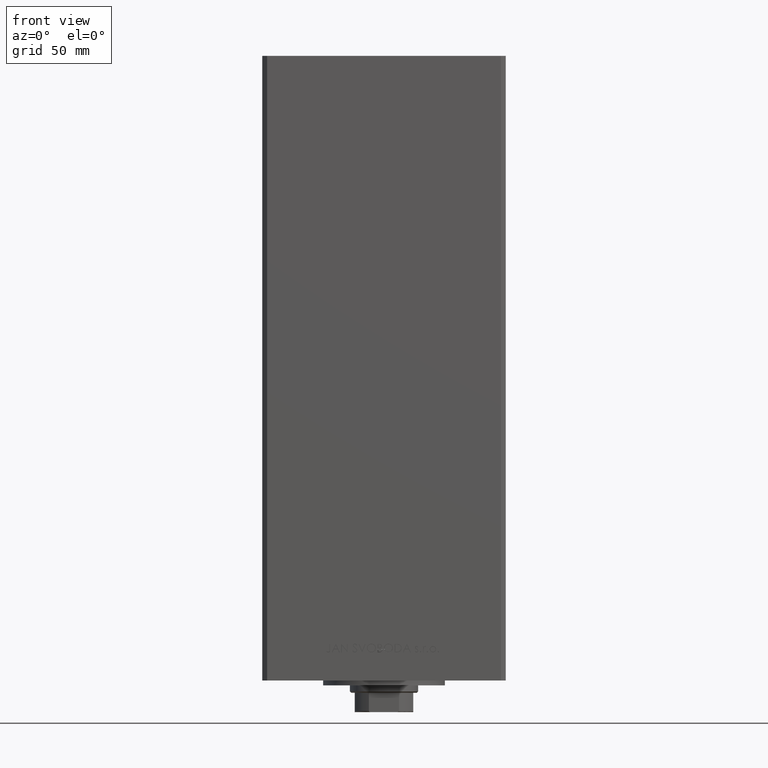
[diagram: clean part render]
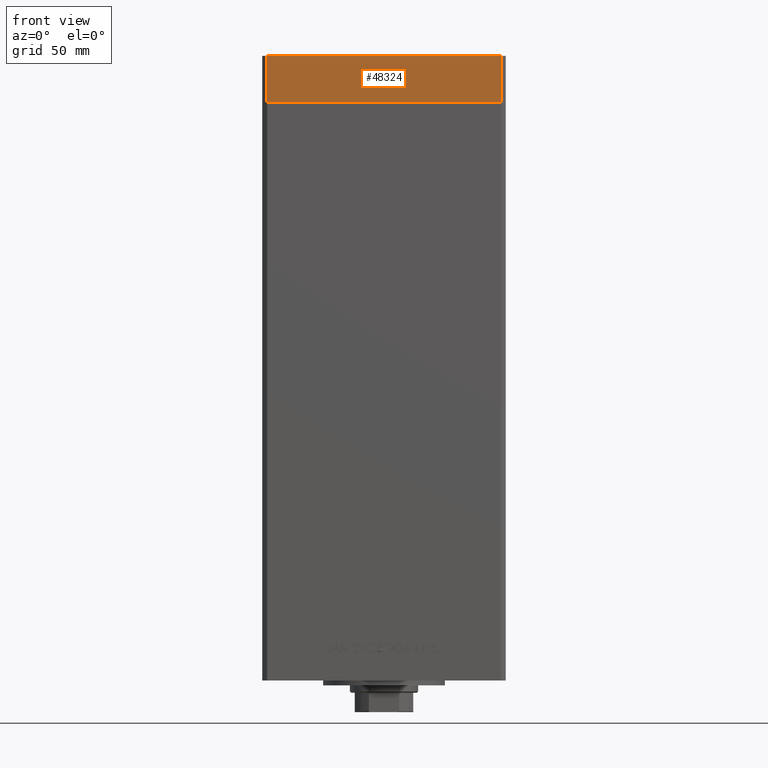
[diagram: same view with one face highlighted and labeled with its STEP entity id]
A machine part, front view. The second image highlights one B-rep face of the part: STEP entity #48324.
In plain terms, the highlighted planar face has unit normal (0, -1, 0).
Its self-contained STEP definition (entity closure, byte-faithful):
#496 = ORIENTED_EDGE ( 'NONE', *, *, #34323, .T. ) ;
#691 = LINE ( 'NONE', #32709, #38735 ) ;
#1928 = AXIS2_PLACEMENT_3D ( 'NONE', #32677, #12891, #24913 ) ;
#4948 = CARTESIAN_POINT ( 'NONE',  ( 47.99999999999999289, -43.50000000000001421, -19.00000000000000000 ) ) ;
#10324 = VECTOR ( 'NONE', #16279, 1000.000000000000000 ) ;
#10423 = EDGE_LOOP ( 'NONE', ( #47943, #42911, #19730, #496 ) ) ;
#12891 = DIRECTION ( 'NONE',  ( 0.000000000000000000, -1.000000000000000000, 0.000000000000000000 ) ) ;
#14325 = EDGE_CURVE ( 'NONE', #32372, #47037, #691, .T. ) ;
#16279 = DIRECTION ( 'NONE',  ( 0.000000000000000000, 0.000000000000000000, 1.000000000000000000 ) ) ;
#16957 = LINE ( 'NONE', #21226, #46365 ) ;
#19730 = ORIENTED_EDGE ( 'NONE', *, *, #14325, .T. ) ;
#20421 = PLANE ( 'NONE',  #1928 ) ;
#20466 = LINE ( 'NONE', #43489, #49608 ) ;
#21226 = CARTESIAN_POINT ( 'NONE',  ( -47.99999999999999289, -43.50000000000001421, 0.000000000000000000 ) ) ;
#24913 = DIRECTION ( 'NONE',  ( 0.000000000000000000, -0.000000000000000000, -1.000000000000000000 ) ) ;
#30332 = CARTESIAN_POINT ( 'NONE',  ( 47.99999999999999289, -43.50000000000001421, 0.000000000000000000 ) ) ;
#31908 = EDGE_CURVE ( 'NONE', #32372, #46249, #34835, .T. ) ;
#32255 = EDGE_CURVE ( 'NONE', #46249, #48389, #16957, .T. ) ;
#32372 = VERTEX_POINT ( 'NONE', #41469 ) ;
#32677 = CARTESIAN_POINT ( 'NONE',  ( -47.99999999999999289, -43.50000000000001421, -19.00000000000000000 ) ) ;
#32709 = CARTESIAN_POINT ( 'NONE',  ( -47.99999999999999289, -43.50000000000001421, -19.00000000000000000 ) ) ;
#34323 = EDGE_CURVE ( 'NONE', #47037, #48389, #20466, .T. ) ;
#34835 = LINE ( 'NONE', #38328, #10324 ) ;
#38328 = CARTESIAN_POINT ( 'NONE',  ( -47.99999999999999289, -43.50000000000001421, -19.00000000000000000 ) ) ;
#38735 = VECTOR ( 'NONE', #44474, 1000.000000000000000 ) ;
#39681 = FACE_OUTER_BOUND ( 'NONE', #10423, .T. ) ;
#39983 = DIRECTION ( 'NONE',  ( 1.000000000000000000, 0.000000000000000000, 0.000000000000000000 ) ) ;
#41469 = CARTESIAN_POINT ( 'NONE',  ( -47.99999999999999289, -43.50000000000001421, -19.00000000000000000 ) ) ;
#42758 = DIRECTION ( 'NONE',  ( 0.000000000000000000, 0.000000000000000000, 1.000000000000000000 ) ) ;
#42911 = ORIENTED_EDGE ( 'NONE', *, *, #31908, .F. ) ;
#43489 = CARTESIAN_POINT ( 'NONE',  ( 47.99999999999999289, -43.50000000000001421, -19.00000000000000000 ) ) ;
#44474 = DIRECTION ( 'NONE',  ( 1.000000000000000000, 0.000000000000000000, 0.000000000000000000 ) ) ;
#44773 = CARTESIAN_POINT ( 'NONE',  ( -47.99999999999999289, -43.50000000000001421, 0.000000000000000000 ) ) ;
#46249 = VERTEX_POINT ( 'NONE', #44773 ) ;
#46365 = VECTOR ( 'NONE', #39983, 1000.000000000000000 ) ;
#47037 = VERTEX_POINT ( 'NONE', #4948 ) ;
#47943 = ORIENTED_EDGE ( 'NONE', *, *, #32255, .F. ) ;
#48324 = ADVANCED_FACE ( 'NONE', ( #39681 ), #20421, .T. ) ;
#48389 = VERTEX_POINT ( 'NONE', #30332 ) ;
#49608 = VECTOR ( 'NONE', #42758, 1000.000000000000000 ) ;